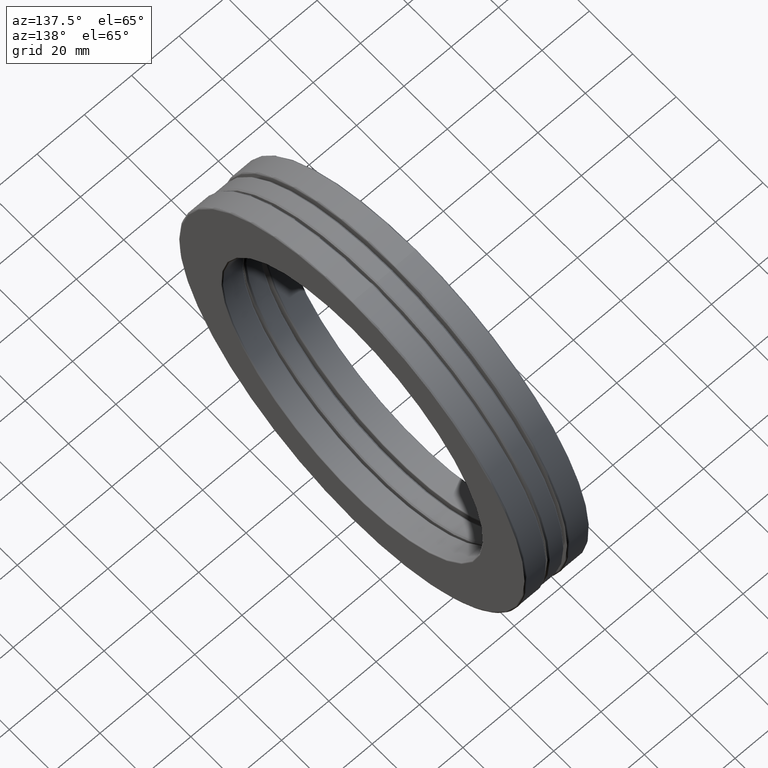
[diagram: clean part render]
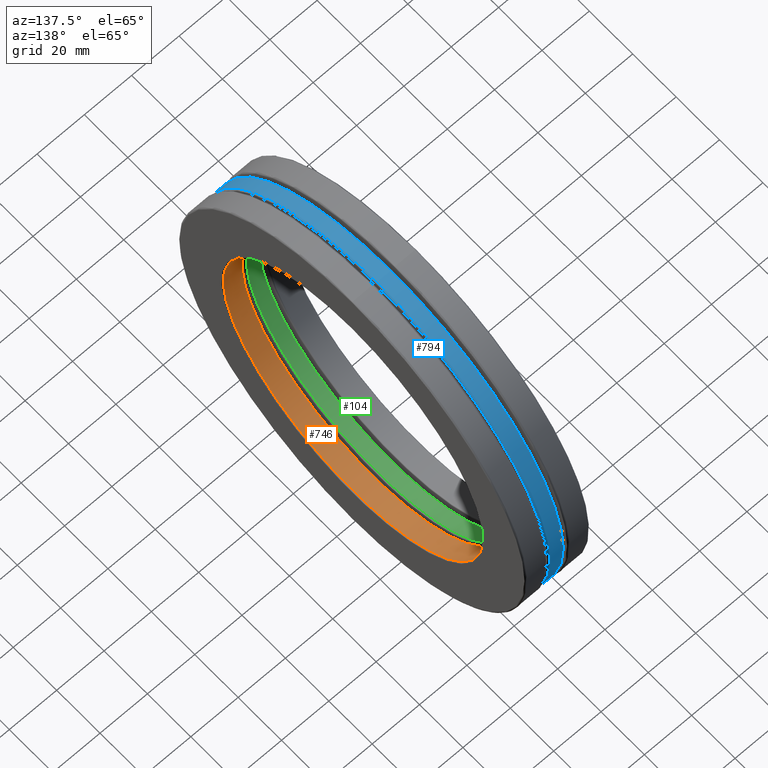
[diagram: same view with three faces highlighted in distinct colors, each labeled with its STEP entity id]
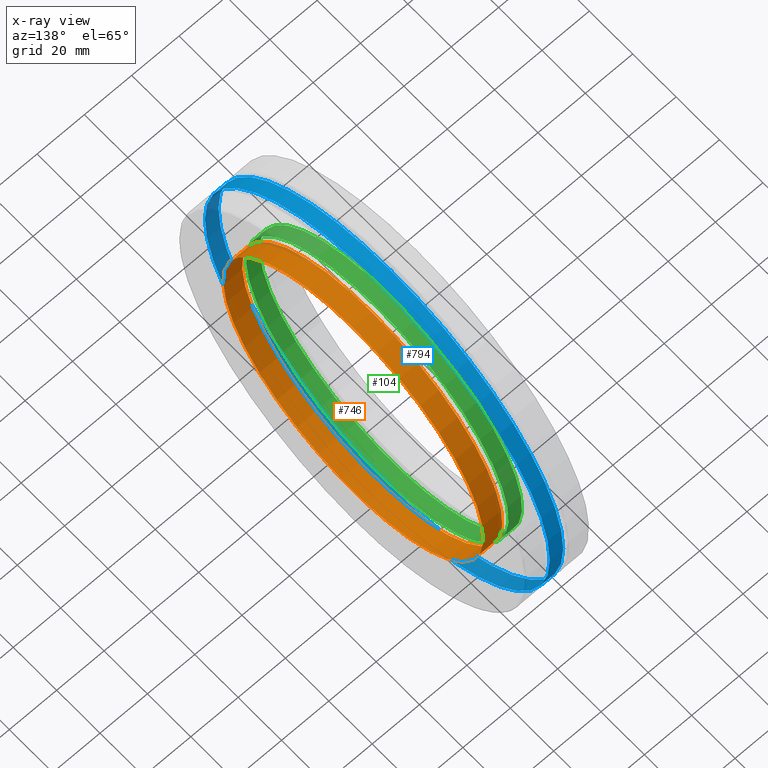
[diagram: x-ray of the same camera — body ghosted, the three highlighted faces saturated]
A machine part, auxiliary view with three faces highlighted in distinct colors.
The next image is the same camera in x-ray (body ghosted, the three faces saturated) — at least one of them is partly hidden behind the body in this view.
Their STEP definitions:

[orange] entity #746 — the highlighted cylindrical surface (bore or boss wall) has radius 59.9948 mm, axis along (-1, -0, -0).
#6 = EDGE_LOOP ( 'NONE', ( #730 ) ) ;
#9 = CARTESIAN_POINT ( 'NONE',  ( 0.1971702100000012600, 0.0000000000000000000, 0.0000000000000000000 ) ) ;
#78 = DIRECTION ( 'NONE',  ( 0.0000000000000000000, 0.0000000000000000000, 1.000000000000000000 ) ) ;
#94 = CARTESIAN_POINT ( 'NONE',  ( 0.5115000000000015100, 0.0000000000000000000, 2.362000000000000100 ) ) ;
#127 = DIRECTION ( 'NONE',  ( -1.000000000000000000, -0.0000000000000000000, -0.0000000000000000000 ) ) ;
#225 = AXIS2_PLACEMENT_3D ( 'NONE', #403, #709, #78 ) ;
#360 = CARTESIAN_POINT ( 'NONE',  ( 0.1971702100000012600, 0.0000000000000000000, 2.362000000000000100 ) ) ;
#403 = CARTESIAN_POINT ( 'NONE',  ( 0.0000000000000000000, 0.0000000000000000000, 0.0000000000000000000 ) ) ;
#448 = VERTEX_POINT ( 'NONE', #360 ) ;
#454 = DIRECTION ( 'NONE',  ( -1.000000000000000000, -0.0000000000000000000, -0.0000000000000000000 ) ) ;
#473 = FACE_OUTER_BOUND ( 'NONE', #6, .T. ) ;
#492 = CYLINDRICAL_SURFACE ( 'NONE', #225, 2.362000000000000100 ) ;
#512 = AXIS2_PLACEMENT_3D ( 'NONE', #9, #454, #775 ) ;
#545 = CIRCLE ( 'NONE', #776, 2.362000000000000100 ) ;
#603 = EDGE_CURVE ( 'NONE', #766, #766, #545, .T. ) ;
#629 = CARTESIAN_POINT ( 'NONE',  ( 0.5115000000000015100, 0.0000000000000000000, 0.0000000000000000000 ) ) ;
#691 = DIRECTION ( 'NONE',  ( 0.0000000000000000000, 0.0000000000000000000, 1.000000000000000000 ) ) ;
#709 = DIRECTION ( 'NONE',  ( -1.000000000000000000, -0.0000000000000000000, -0.0000000000000000000 ) ) ;
#721 = EDGE_LOOP ( 'NONE', ( #733 ) ) ;
#730 = ORIENTED_EDGE ( 'NONE', *, *, #799, .T. ) ;
#733 = ORIENTED_EDGE ( 'NONE', *, *, #603, .F. ) ;
#746 = ADVANCED_FACE ( 'NONE', ( #473, #821 ), #492, .F. ) ;
#766 = VERTEX_POINT ( 'NONE', #94 ) ;
#775 = DIRECTION ( 'NONE',  ( 0.0000000000000000000, 0.0000000000000000000, 1.000000000000000000 ) ) ;
#776 = AXIS2_PLACEMENT_3D ( 'NONE', #629, #127, #691 ) ;
#799 = EDGE_CURVE ( 'NONE', #448, #448, #802, .T. ) ;
#802 = CIRCLE ( 'NONE', #512, 2.362000000000000100 ) ;
#821 = FACE_OUTER_BOUND ( 'NONE', #721, .T. ) ;

[blue] entity #794 — the highlighted cylindrical surface (bore or boss wall) has radius 79.4893 mm, axis along (-1, -0, -0).
#80 = CARTESIAN_POINT ( 'NONE',  ( 0.0000000000000000000, 0.0000000000000000000, 0.0000000000000000000 ) ) ;
#148 = DIRECTION ( 'NONE',  ( -1.000000000000000000, -0.0000000000000000000, -0.0000000000000000000 ) ) ;
#159 = DIRECTION ( 'NONE',  ( 0.0000000000000000000, 0.0000000000000000000, 1.000000000000000000 ) ) ;
#195 = CYLINDRICAL_SURFACE ( 'NONE', #550, 3.129500000000000600 ) ;
#232 = EDGE_CURVE ( 'NONE', #639, #639, #272, .T. ) ;
#260 = CIRCLE ( 'NONE', #822, 3.129500000000000600 ) ;
#272 = CIRCLE ( 'NONE', #444, 3.129500000000000600 ) ;
#278 = EDGE_LOOP ( 'NONE', ( #323 ) ) ;
#311 = ORIENTED_EDGE ( 'NONE', *, *, #232, .F. ) ;
#323 = ORIENTED_EDGE ( 'NONE', *, *, #582, .T. ) ;
#363 = CARTESIAN_POINT ( 'NONE',  ( -0.1128750000000000200, 0.0000000000000000000, 0.0000000000000000000 ) ) ;
#444 = AXIS2_PLACEMENT_3D ( 'NONE', #363, #493, #159 ) ;
#459 = DIRECTION ( 'NONE',  ( 0.0000000000000000000, 0.0000000000000000000, 1.000000000000000000 ) ) ;
#479 = CARTESIAN_POINT ( 'NONE',  ( 0.1128749999999999500, 0.0000000000000000000, 3.129500000000000600 ) ) ;
#493 = DIRECTION ( 'NONE',  ( -1.000000000000000000, -0.0000000000000000000, -0.0000000000000000000 ) ) ;
#510 = FACE_OUTER_BOUND ( 'NONE', #705, .T. ) ;
#539 = FACE_OUTER_BOUND ( 'NONE', #278, .T. ) ;
#540 = CARTESIAN_POINT ( 'NONE',  ( -0.1128750000000000200, 0.0000000000000000000, 3.129500000000000600 ) ) ;
#550 = AXIS2_PLACEMENT_3D ( 'NONE', #80, #148, #459 ) ;
#572 = DIRECTION ( 'NONE',  ( 0.0000000000000000000, 0.0000000000000000000, 1.000000000000000000 ) ) ;
#582 = EDGE_CURVE ( 'NONE', #672, #672, #260, .T. ) ;
#639 = VERTEX_POINT ( 'NONE', #540 ) ;
#672 = VERTEX_POINT ( 'NONE', #479 ) ;
#705 = EDGE_LOOP ( 'NONE', ( #311 ) ) ;
#752 = DIRECTION ( 'NONE',  ( -1.000000000000000000, -0.0000000000000000000, -0.0000000000000000000 ) ) ;
#756 = CARTESIAN_POINT ( 'NONE',  ( 0.1128749999999999500, 0.0000000000000000000, 0.0000000000000000000 ) ) ;
#794 = ADVANCED_FACE ( 'NONE', ( #539, #510 ), #195, .T. ) ;
#822 = AXIS2_PLACEMENT_3D ( 'NONE', #756, #752, #572 ) ;

[green] entity #104 — the highlighted cylindrical surface (bore or boss wall) has radius 60.5028 mm, axis along (-1, -0, -0).
#7 = CIRCLE ( 'NONE', #71, 2.381999999999999700 ) ;
#13 = CARTESIAN_POINT ( 'NONE',  ( 0.0000000000000000000, 0.0000000000000000000, 0.0000000000000000000 ) ) ;
#24 = FACE_OUTER_BOUND ( 'NONE', #300, .T. ) ;
#41 = AXIS2_PLACEMENT_3D ( 'NONE', #501, #249, #676 ) ;
#43 = AXIS2_PLACEMENT_3D ( 'NONE', #13, #641, #72 ) ;
#55 = ORIENTED_EDGE ( 'NONE', *, *, #609, .F. ) ;
#71 = AXIS2_PLACEMENT_3D ( 'NONE', #452, #199, #627 ) ;
#72 = DIRECTION ( 'NONE',  ( 0.0000000000000000000, 0.0000000000000000000, 1.000000000000000000 ) ) ;
#104 = ADVANCED_FACE ( 'NONE', ( #24, #757 ), #368, .F. ) ;
#128 = EDGE_LOOP ( 'NONE', ( #267 ) ) ;
#199 = DIRECTION ( 'NONE',  ( -1.000000000000000000, -0.0000000000000000000, -0.0000000000000000000 ) ) ;
#249 = DIRECTION ( 'NONE',  ( -1.000000000000000000, -0.0000000000000000000, -0.0000000000000000000 ) ) ;
#267 = ORIENTED_EDGE ( 'NONE', *, *, #435, .T. ) ;
#299 = CARTESIAN_POINT ( 'NONE',  ( -0.1128749999999999500, 0.0000000000000000000, 2.381999999999999700 ) ) ;
#300 = EDGE_LOOP ( 'NONE', ( #55 ) ) ;
#368 = CYLINDRICAL_SURFACE ( 'NONE', #43, 2.381999999999999700 ) ;
#370 = VERTEX_POINT ( 'NONE', #299 ) ;
#435 = EDGE_CURVE ( 'NONE', #370, #370, #764, .T. ) ;
#452 = CARTESIAN_POINT ( 'NONE',  ( 0.1128750000000000900, 0.0000000000000000000, 0.0000000000000000000 ) ) ;
#474 = CARTESIAN_POINT ( 'NONE',  ( 0.1128750000000000900, 0.0000000000000000000, 2.381999999999999700 ) ) ;
#501 = CARTESIAN_POINT ( 'NONE',  ( -0.1128749999999999500, 0.0000000000000000000, 0.0000000000000000000 ) ) ;
#609 = EDGE_CURVE ( 'NONE', #654, #654, #7, .T. ) ;
#627 = DIRECTION ( 'NONE',  ( 0.0000000000000000000, 0.0000000000000000000, 1.000000000000000000 ) ) ;
#641 = DIRECTION ( 'NONE',  ( -1.000000000000000000, -0.0000000000000000000, -0.0000000000000000000 ) ) ;
#654 = VERTEX_POINT ( 'NONE', #474 ) ;
#676 = DIRECTION ( 'NONE',  ( 0.0000000000000000000, 0.0000000000000000000, 1.000000000000000000 ) ) ;
#757 = FACE_OUTER_BOUND ( 'NONE', #128, .T. ) ;
#764 = CIRCLE ( 'NONE', #41, 2.381999999999999700 ) ;